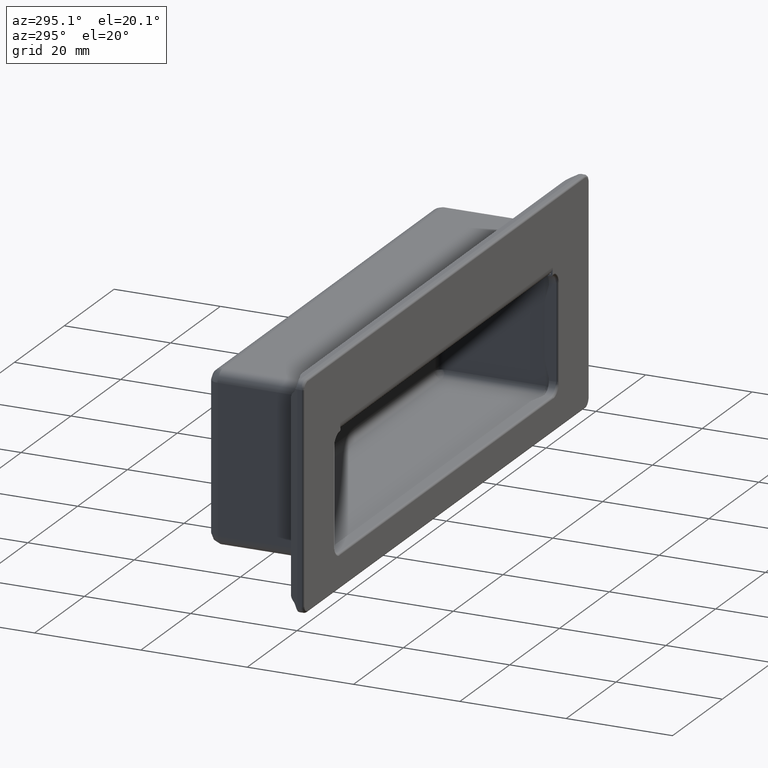
[diagram: clean part render]
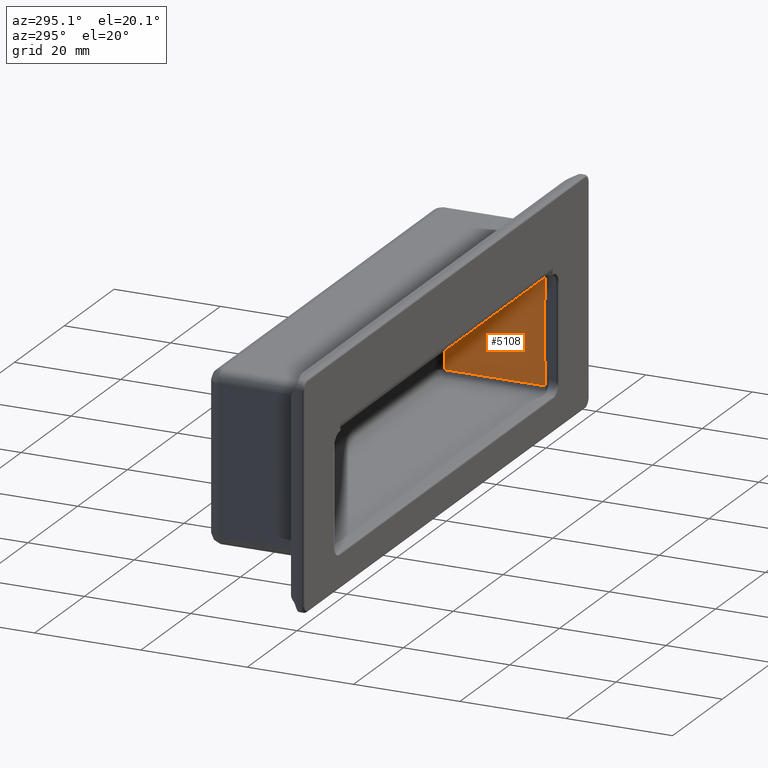
[diagram: same view with one face highlighted and labeled with its STEP entity id]
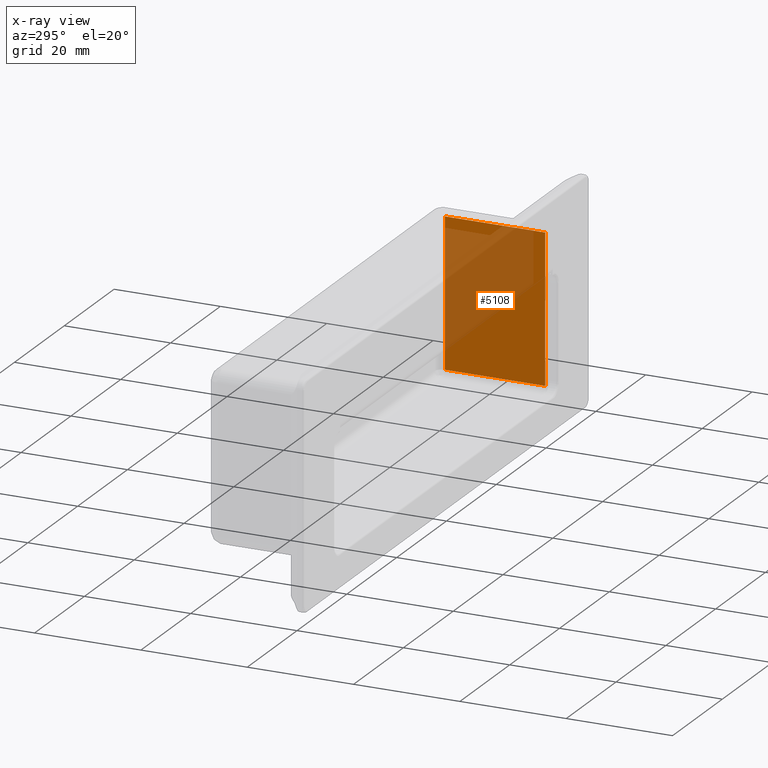
[diagram: x-ray of the same camera — body ghosted, the highlighted face saturated]
A machine part, auxiliary view. The second image highlights one B-rep face of the part: STEP entity #5108.
The next image is the same camera in x-ray: the body ghosted, the highlighted face saturated — about 50% of this face is hidden behind the body in this view.
In plain terms, the highlighted face is a freeform B-spline surface patch.
Its self-contained STEP definition (entity closure, byte-faithful):
#4580=CARTESIAN_POINT('',(45.200000000000003,2.600000000000035,-13.900000000000199));
#4581=VERTEX_POINT('',#4580);
#4594=CARTESIAN_POINT('',(45.200000000000003,21.500000000000000,-13.900000000000199));
#4595=VERTEX_POINT('',#4594);
#4596=CARTESIAN_POINT('',(45.200000000000003,21.500000000000000,-13.900000000000199));
#4597=CARTESIAN_POINT('',(45.200000000000003,2.600000000000035,-13.900000000000199));
#4598=QUASI_UNIFORM_CURVE('',1,(#4596,#4597),.UNSPECIFIED.,.F.,.U.);
#4599=EDGE_CURVE('',#4595,#4581,#4598,.T.);
#4681=CARTESIAN_POINT('',(45.200000000000003,21.500000000000000,13.899999999999860));
#4682=VERTEX_POINT('',#4681);
#4697=CARTESIAN_POINT('',(45.200000000000003,21.500000000000000,13.899999999999860));
#4698=CARTESIAN_POINT('',(45.200000000000003,21.500000000000000,-13.900000000000199));
#4699=QUASI_UNIFORM_CURVE('',1,(#4697,#4698),.UNSPECIFIED.,.F.,.U.);
#4700=EDGE_CURVE('',#4682,#4595,#4699,.T.);
#4863=CARTESIAN_POINT('',(45.200000000000003,2.600000000000035,13.899999999999860));
#4864=VERTEX_POINT('',#4863);
#4865=CARTESIAN_POINT('',(45.200000000000003,2.600000000000035,13.899999999999860));
#4866=CARTESIAN_POINT('',(45.200000000000003,21.500000000000000,13.899999999999860));
#4867=QUASI_UNIFORM_CURVE('',1,(#4865,#4866),.UNSPECIFIED.,.F.,.U.);
#4868=EDGE_CURVE('',#4864,#4682,#4867,.T.);
#5093=CARTESIAN_POINT('',(45.200000000000003,1.655945036631904,15.288609946118070));
#5094=CARTESIAN_POINT('',(45.200000000000003,22.444055470305639,15.288609946118070));
#5095=CARTESIAN_POINT('',(45.200000000000003,1.655945036631904,-15.288610691772520));
#5096=CARTESIAN_POINT('',(45.200000000000003,22.444055470305639,-15.288610691772520));
#5097=B_SPLINE_SURFACE_WITH_KNOTS('',1,1,((#5093,#5095),(#5094,#5096)),.UNSPECIFIED.,.F.,.F.,.U.,(2,2),(2,2),(0.0,20.788110433673729),(0.0,30.577220637890591),.UNSPECIFIED.);
#5098=ORIENTED_EDGE('',*,*,#4599,.T.);
#5099=CARTESIAN_POINT('',(45.200000000000003,2.600000000000035,-13.900000000000199));
#5100=CARTESIAN_POINT('',(45.200000000000003,2.600000000000035,13.899999999999860));
#5101=QUASI_UNIFORM_CURVE('',1,(#5099,#5100),.UNSPECIFIED.,.F.,.U.);
#5102=EDGE_CURVE('',#4581,#4864,#5101,.T.);
#5103=ORIENTED_EDGE('',*,*,#5102,.T.);
#5104=ORIENTED_EDGE('',*,*,#4868,.T.);
#5105=ORIENTED_EDGE('',*,*,#4700,.T.);
#5106=EDGE_LOOP('',(#5098,#5103,#5104,#5105));
#5107=FACE_OUTER_BOUND('',#5106,.T.);
#5108=ADVANCED_FACE('',(#5107),#5097,.T.);